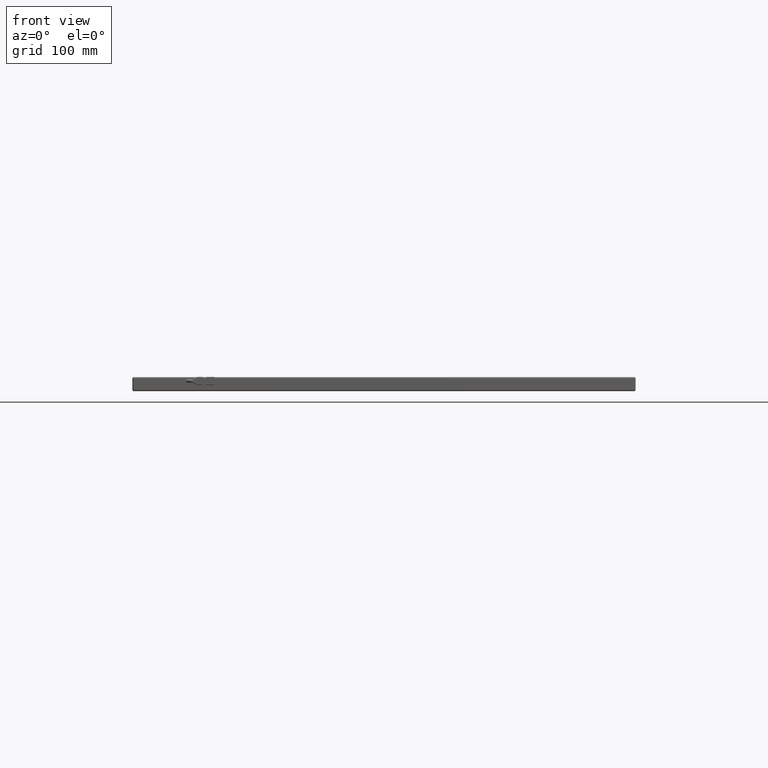
[diagram: clean part render]
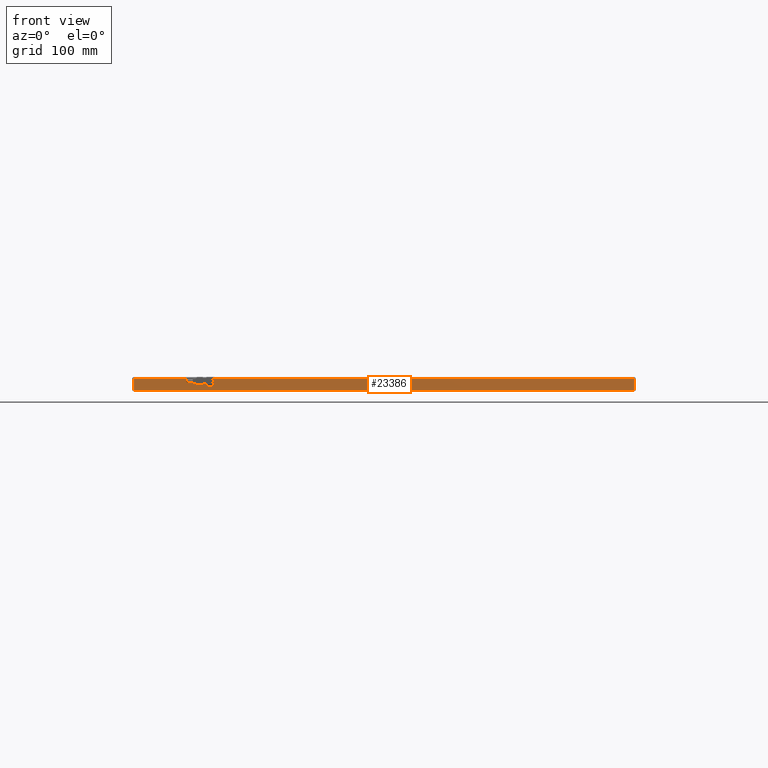
[diagram: same view with one face highlighted and labeled with its STEP entity id]
A machine part, front view. The second image highlights one B-rep face of the part: STEP entity #23386.
In plain terms, the highlighted planar face has unit normal (0, 1, 0).
Its self-contained STEP definition (entity closure, byte-faithful):
#132 = EDGE_CURVE ( 'NONE', #4585, #5482, #7820, .T. ) ;
#895 = VERTEX_POINT ( 'NONE', #18161 ) ;
#926 = DIRECTION ( 'NONE',  ( 0.0000000000000000000, -0.0000000000000000000, 1.000000000000000000 ) ) ;
#928 = ORIENTED_EDGE ( 'NONE', *, *, #16937, .F. ) ;
#2278 = VECTOR ( 'NONE', #20531, 1000.000000000000000 ) ;
#2768 = PLANE ( 'NONE',  #6360 ) ;
#3784 = CARTESIAN_POINT ( 'NONE',  ( -188.9714352615741600, -235.3025821596243600, 3.350747879395791900 ) ) ;
#3984 = CARTESIAN_POINT ( 'NONE',  ( -190.7714544035095500, -235.3025821596243600, 6.999999999999999100 ) ) ;
#4182 = EDGE_CURVE ( 'NONE', #11908, #18077, #24582, .T. ) ;
#4585 = VERTEX_POINT ( 'NONE', #3784 ) ;
#5238 = ORIENTED_EDGE ( 'NONE', *, *, #9782, .F. ) ;
#5273 = LINE ( 'NONE', #6145, #20230 ) ;
#5482 = VERTEX_POINT ( 'NONE', #17104 ) ;
#5734 = CARTESIAN_POINT ( 'NONE',  ( -190.7714544035095200, -235.3025821596243600, 6.999999999999999100 ) ) ;
#6092 = LINE ( 'NONE', #7295, #10637 ) ;
#6145 = CARTESIAN_POINT ( 'NONE',  ( -243.9711023082942100, -235.3025821596243600, -4.000000000000111000 ) ) ;
#6360 = AXIS2_PLACEMENT_3D ( 'NONE', #24385, #12681, #926 ) ;
#6932 = DIRECTION ( 'NONE',  ( 1.000000000000000000, -0.0000000000000000000, 0.0000000000000000000 ) ) ;
#7295 = CARTESIAN_POINT ( 'NONE',  ( -242.9711023082943200, -235.3025821596243600, 6.999999999999999100 ) ) ;
#7509 = LINE ( 'NONE', #3984, #21854 ) ;
#7612 = CARTESIAN_POINT ( 'NONE',  ( -188.9714352615741600, -235.3025821596243600, 5.151413173295711800 ) ) ;
#7812 = DIRECTION ( 'NONE',  ( -0.0000000000000000000, 0.0000000000000000000, -1.000000000000000000 ) ) ;
#7820 = CIRCLE ( 'NONE', #19266, 1.800665293899919900 ) ;
#8019 = LINE ( 'NONE', #14617, #17785 ) ;
#8421 = CARTESIAN_POINT ( 'NONE',  ( 255.0288976917057400, -235.3025821596243600, 6.999999999999999100 ) ) ;
#8635 = LINE ( 'NONE', #18615, #13222 ) ;
#9004 = CIRCLE ( 'NONE', #13608, 1.800665293899919900 ) ;
#9222 = EDGE_CURVE ( 'NONE', #11539, #25059, #7509, .T. ) ;
#9569 = DIRECTION ( 'NONE',  ( 0.0000000000000000000, 0.0000000000000000000, -1.000000000000000000 ) ) ;
#9782 = EDGE_CURVE ( 'NONE', #13665, #11908, #8019, .T. ) ;
#9859 = DIRECTION ( 'NONE',  ( -0.0000000000000000000, 0.0000000000000000000, -1.000000000000000000 ) ) ;
#10178 = ORIENTED_EDGE ( 'NONE', *, *, #9222, .F. ) ;
#10637 = VECTOR ( 'NONE', #20937, 1000.000000000000000 ) ;
#10674 = CARTESIAN_POINT ( 'NONE',  ( -187.1714544035095600, -235.3025821596243600, 6.999999999999999100 ) ) ;
#11539 = VERTEX_POINT ( 'NONE', #5734 ) ;
#11908 = VERTEX_POINT ( 'NONE', #24982 ) ;
#12595 = ORIENTED_EDGE ( 'NONE', *, *, #20992, .F. ) ;
#12681 = DIRECTION ( 'NONE',  ( 0.0000000000000000000, 1.000000000000000000, 0.0000000000000000000 ) ) ;
#13222 = VECTOR ( 'NONE', #6932, 1000.000000000000000 ) ;
#13286 = ORIENTED_EDGE ( 'NONE', *, *, #4182, .F. ) ;
#13608 = AXIS2_PLACEMENT_3D ( 'NONE', #7612, #21282, #9569 ) ;
#13629 = EDGE_CURVE ( 'NONE', #5482, #13665, #23103, .T. ) ;
#13665 = VERTEX_POINT ( 'NONE', #16736 ) ;
#14074 = EDGE_CURVE ( 'NONE', #895, #11539, #8635, .T. ) ;
#14457 = ORIENTED_EDGE ( 'NONE', *, *, #14074, .F. ) ;
#14617 = CARTESIAN_POINT ( 'NONE',  ( 256.0288976917057700, -235.3025821596244500, 6.999999999999999100 ) ) ;
#15636 = CARTESIAN_POINT ( 'NONE',  ( -188.9714352615741600, -235.3025821596243600, 5.151413173295711800 ) ) ;
#15661 = DIRECTION ( 'NONE',  ( -0.0000000000000000000, -1.000000000000000000, -0.0000000000000000000 ) ) ;
#15727 = DIRECTION ( 'NONE',  ( 0.0000000000000000000, 0.0000000000000000000, -1.000000000000000000 ) ) ;
#16117 = CARTESIAN_POINT ( 'NONE',  ( 255.0288976917058800, -235.3025821596243600, -4.000000000000113700 ) ) ;
#16152 = EDGE_LOOP ( 'NONE', ( #10178, #14457, #16376, #928, #13286, #5238, #17504, #20702, #12595 ) ) ;
#16376 = ORIENTED_EDGE ( 'NONE', *, *, #24238, .F. ) ;
#16482 = FACE_OUTER_BOUND ( 'NONE', #16152, .T. ) ;
#16736 = CARTESIAN_POINT ( 'NONE',  ( -187.1714544035095900, -235.3025821596244200, 6.999999999999999100 ) ) ;
#16937 = EDGE_CURVE ( 'NONE', #18077, #22025, #5273, .T. ) ;
#17104 = CARTESIAN_POINT ( 'NONE',  ( -187.1714544035095600, -235.3025821596243600, 5.201056010208395400 ) ) ;
#17504 = ORIENTED_EDGE ( 'NONE', *, *, #13629, .F. ) ;
#17785 = VECTOR ( 'NONE', #24359, 1000.000000000000000 ) ;
#18077 = VERTEX_POINT ( 'NONE', #16117 ) ;
#18161 = CARTESIAN_POINT ( 'NONE',  ( -242.9711023082943200, -235.3025821596243600, 6.999999999999999100 ) ) ;
#18615 = CARTESIAN_POINT ( 'NONE',  ( 256.0288976917057700, -235.3025821596243100, 6.999999999999999100 ) ) ;
#19266 = AXIS2_PLACEMENT_3D ( 'NONE', #15636, #15661, #15727 ) ;
#19429 = VECTOR ( 'NONE', #7812, 1000.000000000000000 ) ;
#19719 = CARTESIAN_POINT ( 'NONE',  ( -242.9711023082943200, -235.3025821596243600, -4.000000000000112800 ) ) ;
#19815 = CARTESIAN_POINT ( 'NONE',  ( -190.7714544035095500, -235.3025821596243600, 5.199647904784891100 ) ) ;
#19921 = DIRECTION ( 'NONE',  ( -1.000000000000000000, -0.0000000000000000000, -0.0000000000000000000 ) ) ;
#20230 = VECTOR ( 'NONE', #19921, 1000.000000000000000 ) ;
#20531 = DIRECTION ( 'NONE',  ( 0.0000000000000000000, -0.0000000000000000000, 1.000000000000000000 ) ) ;
#20702 = ORIENTED_EDGE ( 'NONE', *, *, #132, .F. ) ;
#20937 = DIRECTION ( 'NONE',  ( 0.0000000000000000000, -0.0000000000000000000, 1.000000000000000000 ) ) ;
#20992 = EDGE_CURVE ( 'NONE', #25059, #4585, #9004, .T. ) ;
#21282 = DIRECTION ( 'NONE',  ( -0.0000000000000000000, -1.000000000000000000, -0.0000000000000000000 ) ) ;
#21854 = VECTOR ( 'NONE', #9859, 1000.000000000000000 ) ;
#22025 = VERTEX_POINT ( 'NONE', #19719 ) ;
#23103 = LINE ( 'NONE', #10674, #2278 ) ;
#23386 = ADVANCED_FACE ( 'NONE', ( #16482 ), #2768, .F. ) ;
#24238 = EDGE_CURVE ( 'NONE', #22025, #895, #6092, .T. ) ;
#24359 = DIRECTION ( 'NONE',  ( 1.000000000000000000, -0.0000000000000000000, 0.0000000000000000000 ) ) ;
#24385 = CARTESIAN_POINT ( 'NONE',  ( -243.9711023082942100, -235.3025821596243600, 6.999999999999999100 ) ) ;
#24582 = LINE ( 'NONE', #8421, #19429 ) ;
#24982 = CARTESIAN_POINT ( 'NONE',  ( 255.0288976917057900, -235.3025821596244500, 6.999999999999999100 ) ) ;
#25059 = VERTEX_POINT ( 'NONE', #19815 ) ;